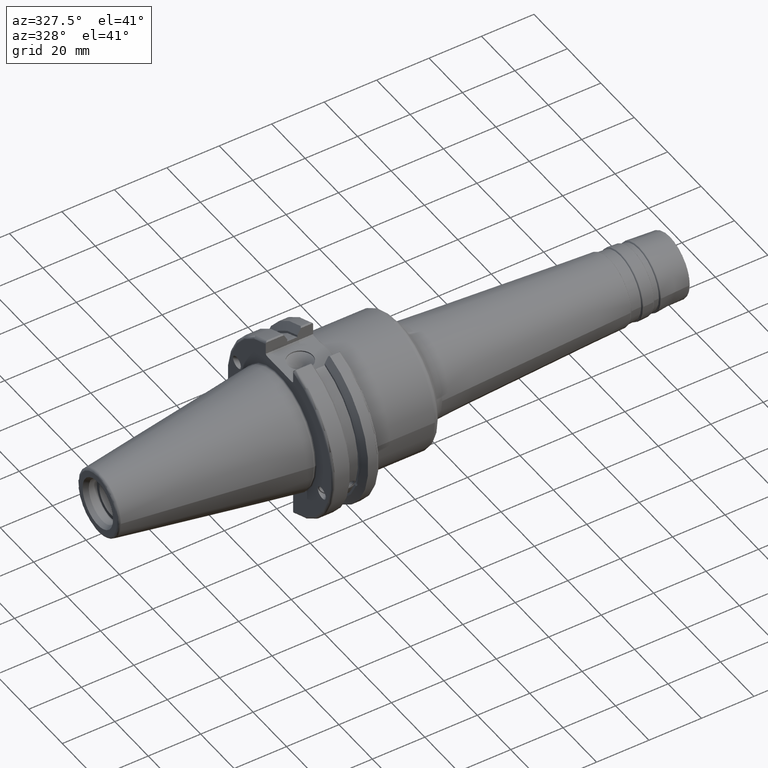
[diagram: clean part render]
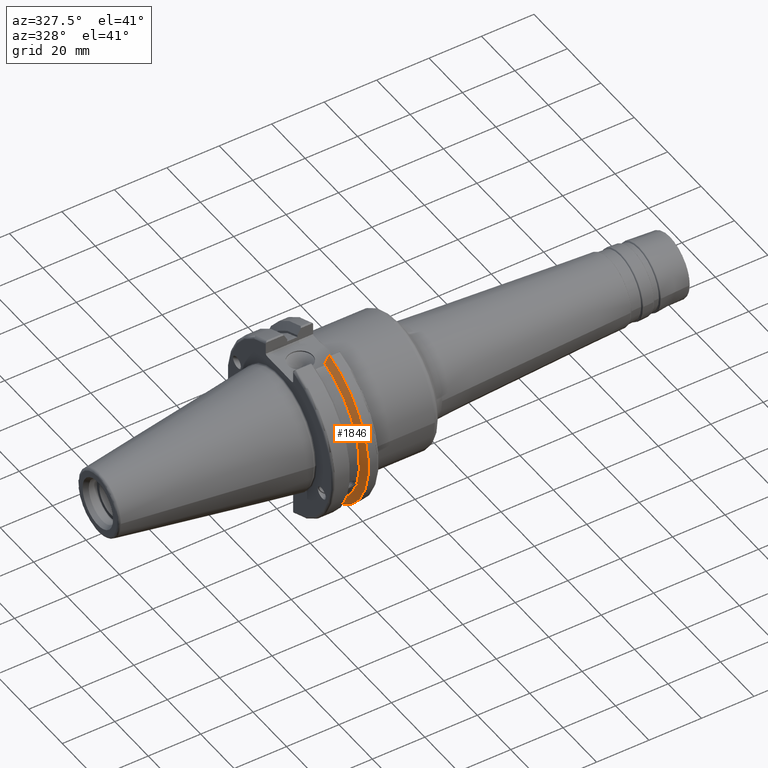
[diagram: same view with one face highlighted and labeled with its STEP entity id]
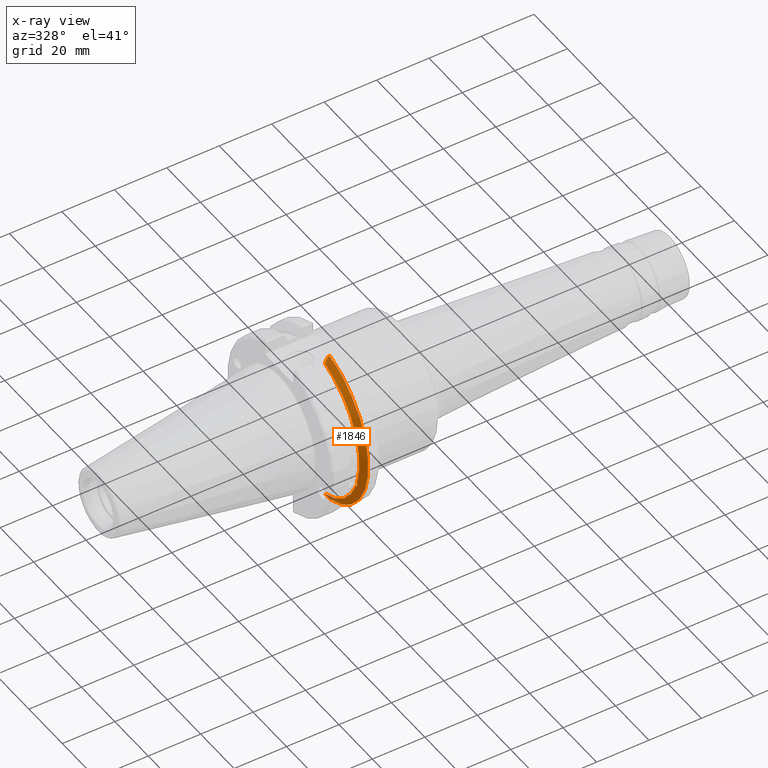
[diagram: x-ray of the same camera — body ghosted, the highlighted face saturated]
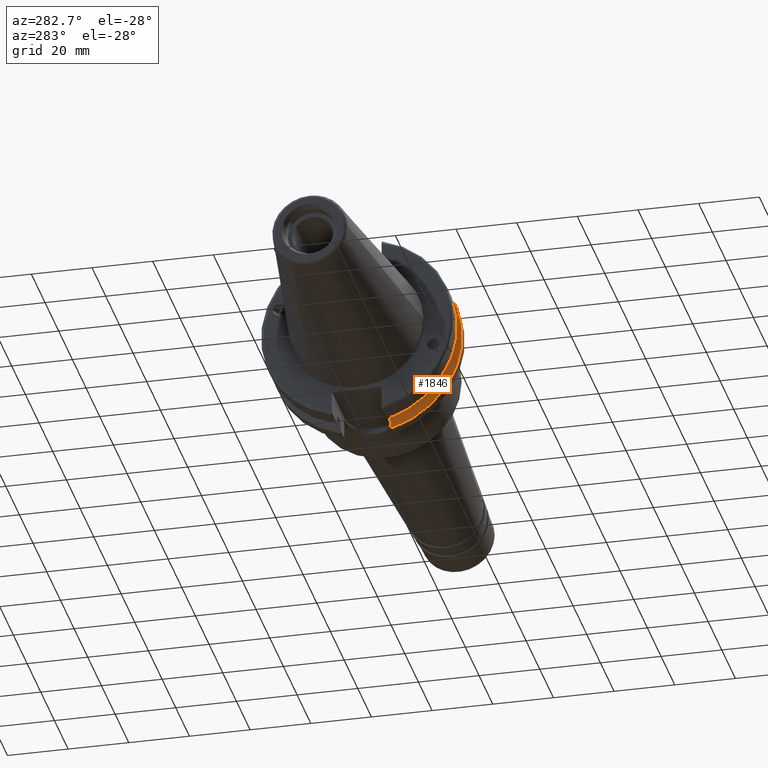
[diagram: same view with one face highlighted and labeled with its STEP entity id]
A machine part, auxiliary view. The second image highlights one B-rep face of the part: STEP entity #1846.
The next image is the same camera in x-ray: the body ghosted, the highlighted face saturated — about 2% of this face is hidden behind the body in this view.
A second angle (auxiliary view) of the same face is appended — the face is thin or edge-on in the first view.
In plain terms, the highlighted conical surface has half-angle 60 deg.
Its self-contained STEP definition (entity closure, byte-faithful):
#15=(
BOUNDED_CURVE()
B_SPLINE_CURVE(2,(#3230,#3231,#3232),.UNSPECIFIED.,.F.,.F.)
B_SPLINE_CURVE_WITH_KNOTS((3,3),(0.,0.276549142795441),.UNSPECIFIED.)
CURVE()
GEOMETRIC_REPRESENTATION_ITEM()
RATIONAL_B_SPLINE_CURVE((1.,1.00095203903848,1.0003161444499))
REPRESENTATION_ITEM('')
);
#16=(
BOUNDED_CURVE()
B_SPLINE_CURVE(2,(#3234,#3235,#3236),.UNSPECIFIED.,.F.,.F.)
B_SPLINE_CURVE_WITH_KNOTS((3,3),(0.,0.0639048713675827),.UNSPECIFIED.)
CURVE()
GEOMETRIC_REPRESENTATION_ITEM()
RATIONAL_B_SPLINE_CURVE((1.,1.0002844421829,1.00047644010585))
REPRESENTATION_ITEM('')
);
#17=(
BOUNDED_CURVE()
B_SPLINE_CURVE(2,(#3240,#3241,#3242),.UNSPECIFIED.,.F.,.F.)
B_SPLINE_CURVE_WITH_KNOTS((3,3),(0.329353533631235,0.393258405001021),
 .UNSPECIFIED.)
CURVE()
GEOMETRIC_REPRESENTATION_ITEM()
RATIONAL_B_SPLINE_CURVE((1.00047644010603,1.00028444218301,1.))
REPRESENTATION_ITEM('')
);
#18=(
BOUNDED_CURVE()
B_SPLINE_CURVE(2,(#3244,#3245,#3246),.UNSPECIFIED.,.F.,.F.)
B_SPLINE_CURVE_WITH_KNOTS((3,3),(0.0550586467398929,0.331607789535851),
 .UNSPECIFIED.)
CURVE()
GEOMETRIC_REPRESENTATION_ITEM()
RATIONAL_B_SPLINE_CURVE((1.00031614444973,1.00095203903796,1.))
REPRESENTATION_ITEM('')
);
#127=B_SPLINE_CURVE_WITH_KNOTS('',3,(#3137,#3138,#3139,#3140,#3141,#3142,
#3143,#3144),.UNSPECIFIED.,.F.,.F.,(4,2,2,4),(0.451995700189025,0.464547828547662,
0.504528771685167,0.544509714822672),.UNSPECIFIED.);
#131=B_SPLINE_CURVE_WITH_KNOTS('',3,(#3199,#3200,#3201,#3202,#3203,#3204,
#3205,#3206),.UNSPECIFIED.,.F.,.F.,(4,2,2,4),(0.544509714822672,0.584490657960178,
0.624471601097683,0.637023729456322),.UNSPECIFIED.);
#226=FACE_OUTER_BOUND('',#338,.T.);
#338=EDGE_LOOP('',(#1444,#1445,#1446,#1447,#1448,#1449,#1450,#1451,#1452));
#676=CIRCLE('',#2060,28.9593772964944);
#677=CIRCLE('',#2061,31.75);
#678=CIRCLE('',#2062,28.9593772964944);
#805=VERTEX_POINT('',#3134);
#806=VERTEX_POINT('',#3136);
#813=VERTEX_POINT('',#3197);
#819=VERTEX_POINT('',#3227);
#820=VERTEX_POINT('',#3229);
#821=VERTEX_POINT('',#3233);
#822=VERTEX_POINT('',#3237);
#823=VERTEX_POINT('',#3239);
#824=VERTEX_POINT('',#3243);
#1032=EDGE_CURVE('',#806,#805,#127,.T.);
#1040=EDGE_CURVE('',#805,#813,#131,.T.);
#1049=EDGE_CURVE('',#813,#819,#676,.T.);
#1050=EDGE_CURVE('',#819,#820,#15,.T.);
#1051=EDGE_CURVE('',#821,#820,#16,.T.);
#1052=EDGE_CURVE('',#822,#821,#677,.T.);
#1053=EDGE_CURVE('',#823,#822,#17,.T.);
#1054=EDGE_CURVE('',#823,#824,#18,.T.);
#1055=EDGE_CURVE('',#824,#806,#678,.T.);
#1444=ORIENTED_EDGE('',*,*,#1032,.T.);
#1445=ORIENTED_EDGE('',*,*,#1040,.T.);
#1446=ORIENTED_EDGE('',*,*,#1049,.T.);
#1447=ORIENTED_EDGE('',*,*,#1050,.T.);
#1448=ORIENTED_EDGE('',*,*,#1051,.F.);
#1449=ORIENTED_EDGE('',*,*,#1052,.F.);
#1450=ORIENTED_EDGE('',*,*,#1053,.F.);
#1451=ORIENTED_EDGE('',*,*,#1054,.T.);
#1452=ORIENTED_EDGE('',*,*,#1055,.T.);
#1793=CONICAL_SURFACE('',#2059,30.3546886482472,1.0471975511966);
#1846=ADVANCED_FACE('',(#226),#1793,.T.);
#2059=AXIS2_PLACEMENT_3D('',#3226,#2471,#2472);
#2060=AXIS2_PLACEMENT_3D('',#3228,#2473,#2474);
#2061=AXIS2_PLACEMENT_3D('',#3238,#2475,#2476);
#2062=AXIS2_PLACEMENT_3D('',#3247,#2477,#2478);
#2471=DIRECTION('center_axis',(1.,0.,0.));
#2472=DIRECTION('ref_axis',(0.,-1.,-1.22464679914735E-16));
#2473=DIRECTION('center_axis',(1.,0.,0.));
#2474=DIRECTION('ref_axis',(0.,0.,-1.));
#2475=DIRECTION('center_axis',(1.,0.,0.));
#2476=DIRECTION('ref_axis',(0.,0.,-1.));
#2477=DIRECTION('center_axis',(1.,0.,0.));
#2478=DIRECTION('ref_axis',(0.,0.,-1.));
#3134=CARTESIAN_POINT('',(13.2341,-27.51401829017,-10.0142836826777));
#3136=CARTESIAN_POINT('',(13.0491,-27.4956274489925,-9.09043478536245));
#3137=CARTESIAN_POINT('Ctrl Pts',(13.0491,-27.4956274489925,-9.09043478536245));
#3138=CARTESIAN_POINT('Ctrl Pts',(13.0632204071996,-27.5087667900418,-9.12860597076217));
#3139=CARTESIAN_POINT('Ctrl Pts',(13.0766929817857,-27.5206055003513,-9.16696618806877));
#3140=CARTESIAN_POINT('Ctrl Pts',(13.130081441159,-27.5642934663232,-9.32791534028656));
#3141=CARTESIAN_POINT('Ctrl Pts',(13.1682197084175,-27.5867382255984,-9.46717946402648));
#3142=CARTESIAN_POINT('Ctrl Pts',(13.2204106446058,-27.5847569104122,-9.74771639360671));
#3143=CARTESIAN_POINT('Ctrl Pts',(13.2341,-27.559599249844,-9.8890510252165));
#3144=CARTESIAN_POINT('Ctrl Pts',(13.2341,-27.51401829017,-10.0142836826777));
#3197=CARTESIAN_POINT('',(13.0491,-26.9060914640648,-10.7101715919071));
#3199=CARTESIAN_POINT('Ctrl Pts',(13.2341,-27.51401829017,-10.0142836826777));
#3200=CARTESIAN_POINT('Ctrl Pts',(13.2341,-27.4684373304961,-10.139516340139));
#3201=CARTESIAN_POINT('Ctrl Pts',(13.2204106446058,-27.3968610665578,-10.2639559818059));
#3202=CARTESIAN_POINT('Ctrl Pts',(13.1682197084175,-27.2180531796526,-10.4801333026531));
#3203=CARTESIAN_POINT('Ctrl Pts',(13.130081441159,-27.1113422433189,-10.5723885976054));
#3204=CARTESIAN_POINT('Ctrl Pts',(13.0766929817857,-26.9744191989197,-10.6676007180673));
#3205=CARTESIAN_POINT('Ctrl Pts',(13.0632204071996,-26.9406927482839,-10.6893765730703));
#3206=CARTESIAN_POINT('Ctrl Pts',(13.0491,-26.9060914640648,-10.7101715919071));
#3226=CARTESIAN_POINT('Origin',(13.8546833845378,0.,0.));
#3227=CARTESIAN_POINT('',(13.0491,-8.19,-27.7771386827498));
#3228=CARTESIAN_POINT('Origin',(13.0491,0.,0.));
#3229=CARTESIAN_POINT('',(14.3815146964874,-8.19,-30.1755016258903));
#3230=CARTESIAN_POINT('Ctrl Pts',(13.0491,-8.19,-27.7771386827498));
#3231=CARTESIAN_POINT('Ctrl Pts',(13.6877364384886,-8.19,-28.930368953993));
#3232=CARTESIAN_POINT('Ctrl Pts',(14.3815146964874,-8.19,-30.1755016258903));
#3233=CARTESIAN_POINT('',(14.6602667690756,-8.67204822802686,-30.5427254764662));
#3234=CARTESIAN_POINT('Ctrl Pts',(14.6602667690756,-8.67204822802687,-30.5427254764662));
#3235=CARTESIAN_POINT('Ctrl Pts',(14.5192085187837,-8.42917748262644,-30.357706789263));
#3236=CARTESIAN_POINT('Ctrl Pts',(14.3815146964874,-8.19,-30.1755016258903));
#3237=CARTESIAN_POINT('',(14.6602667690756,-8.67204822802685,30.5427254764662));
#3238=CARTESIAN_POINT('Origin',(14.6602667690756,0.,0.));
#3239=CARTESIAN_POINT('',(14.3815146964874,-8.18999999999999,30.1755016258903));
#3240=CARTESIAN_POINT('Ctrl Pts',(14.3815146964874,-8.19,30.1755016258903));
#3241=CARTESIAN_POINT('Ctrl Pts',(14.5192085187884,-8.42917748263459,30.3577067892692));
#3242=CARTESIAN_POINT('Ctrl Pts',(14.6602667690756,-8.67204822802686,30.5427254764662));
#3243=CARTESIAN_POINT('',(13.0491,-8.19,27.7771386827498));
#3244=CARTESIAN_POINT('Ctrl Pts',(14.3815146964874,-8.18999999999999,30.1755016258903));
#3245=CARTESIAN_POINT('Ctrl Pts',(13.6877364384816,-8.18999999999999,28.9303689539805));
#3246=CARTESIAN_POINT('Ctrl Pts',(13.0491,-8.19,27.7771386827498));
#3247=CARTESIAN_POINT('Origin',(13.0491,0.,0.));